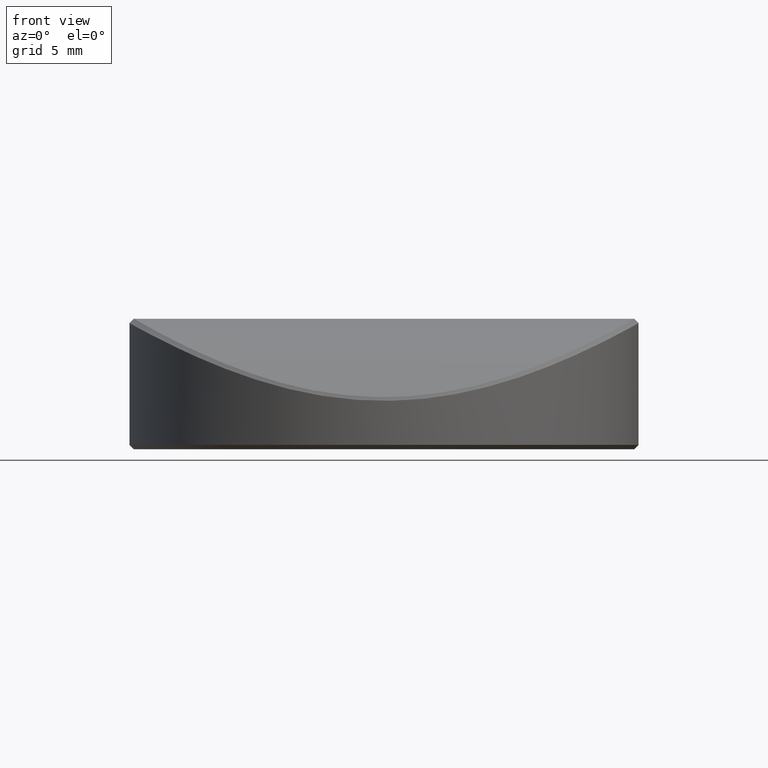
[diagram: clean part render]
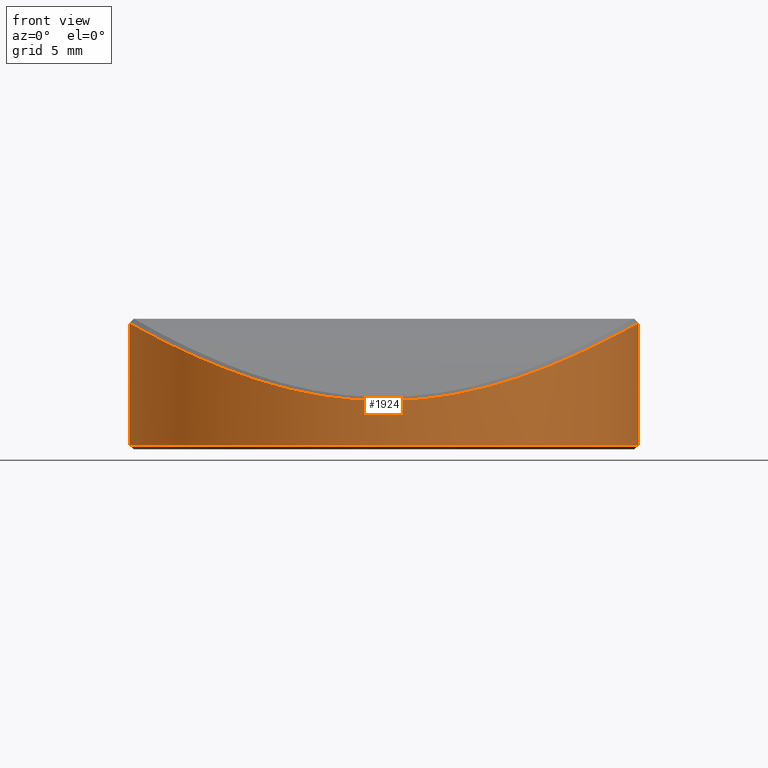
[diagram: same view with one face highlighted and labeled with its STEP entity id]
A machine part, front view. The second image highlights one B-rep face of the part: STEP entity #1924.
In plain terms, the highlighted cylindrical surface (partial cylindrical patch) has radius 11.7 mm, axis along (-0, -0, -1).
Its self-contained STEP definition (entity closure, byte-faithful):
#5 = CARTESIAN_POINT ( 'NONE',  ( 11.31276709840523331, -2.986761327110799780, 5.586652815700380081 ) ) ;
#21 = CARTESIAN_POINT ( 'NONE',  ( 10.24079165337456132, -5.659046859292805820, 5.022656455441911305 ) ) ;
#37 = CARTESIAN_POINT ( 'NONE',  ( 10.44133675402282790, -5.280562683658028611, 5.125069347607206005 ) ) ;
#51 = CARTESIAN_POINT ( 'NONE',  ( 9.393559780590925001, -6.975071816256519952, 4.606327151723854207 ) ) ;
#52 = CARTESIAN_POINT ( 'NONE',  ( -9.366290171199302961, -7.011647395919766268, 4.593378817349505816 ) ) ;
#57 = CARTESIAN_POINT ( 'NONE',  ( -3.366476431530291968, -11.20532172326735854, 2.549591653563082261 ) ) ;
#61 = CARTESIAN_POINT ( 'NONE',  ( 10.33073799526684944, -5.492554153558276475, 5.068447421700122746 ) ) ;
#62 = CARTESIAN_POINT ( 'NONE',  ( -11.50614074134109188, -2.129880214035561270, 5.692561529066376025 ) ) ;
#65 = CARTESIAN_POINT ( 'NONE',  ( -0.4957057794558956121, -11.68990061184792495, 2.232012667514902571 ) ) ;
#66 = CARTESIAN_POINT ( 'NONE',  ( -7.433077330393649262, -9.035452578234307808, 3.752557954352078617 ) ) ;
#77 = CARTESIAN_POINT ( 'NONE',  ( 10.05152650205296538, -5.988247894015151118, 4.927344808007994459 ) ) ;
#82 = CARTESIAN_POINT ( 'NONE',  ( -5.483742273092666153, -10.33533539184278105, 3.072967787859373967 ) ) ;
#93 = CARTESIAN_POINT ( 'NONE',  ( 7.346831424935656329, -9.106316777272791541, 3.718618832407679431 ) ) ;
#94 = CARTESIAN_POINT ( 'NONE',  ( -10.26931150986323793, -5.606564367772189250, 5.037161539109564323 ) ) ;
#100 = CARTESIAN_POINT ( 'NONE',  ( -6.257483418176787993, -9.886845739900250507, 3.320898057219264121 ) ) ;
#109 = CARTESIAN_POINT ( 'NONE',  ( 5.096102939514758567, -10.53186893283676184, 2.959771684779168854 ) ) ;
#114 = CARTESIAN_POINT ( 'NONE',  ( -5.649543323659997007, -10.24602293499118666, 3.123530586749246662 ) ) ;
#124 = CARTESIAN_POINT ( 'NONE',  ( 6.707797283012785883, -9.586327303402704558, 3.478821411046624679 ) ) ;
#125 = CARTESIAN_POINT ( 'NONE',  ( -11.15312418411757811, -3.536581440406037391, 5.500153962280033504 ) ) ;
#130 = CARTESIAN_POINT ( 'NONE',  ( -7.067860119687424891, -9.324282336933544357, 3.611639716031513903 ) ) ;
#136 = CARTESIAN_POINT ( 'NONE',  ( 7.647669339163194913, -8.854557901609680926, 3.838074246232711761 ) ) ;
#137 = CARTESIAN_POINT ( 'NONE',  ( -11.69999999999999929, -4.116580123655899648E-16, 5.800000000000006040 ) ) ;
#150 = CARTESIAN_POINT ( 'NONE',  ( 6.181486970281519611, -9.933925524965175669, 3.295436732962097715 ) ) ;
#151 = CARTESIAN_POINT ( 'NONE',  ( 11.70000000017588881, -8.827351375119261474E-15, 5.800000004118521346 ) ) ;
#165 = CARTESIAN_POINT ( 'NONE',  ( 11.69262414046449194, -0.4899454896524162439, 5.795880176046194876 ) ) ;
#166 = CARTESIAN_POINT ( 'NONE',  ( -8.246145710022080522, -8.300077180708074209, 4.087148891660275396 ) ) ;
#179 = CARTESIAN_POINT ( 'NONE',  ( -11.69999999999999929, 0.000000000000000000, 0.2000000000000040079 ) ) ;
#180 = CARTESIAN_POINT ( 'NONE',  ( -7.637594678866840070, -8.863249329813607247, 3.834014150313897140 ) ) ;
#190 = CARTESIAN_POINT ( 'NONE',  ( 0.3926453362889270049, -11.69507825818585012, 2.228515826669296374 ) ) ;
#211 = CARTESIAN_POINT ( 'NONE',  ( -9.523235068935751002, -6.798046038570621619, 4.668198434732349078 ) ) ;
#221 = CYLINDRICAL_SURFACE ( 'NONE', #1421, 11.69999999999999929 ) ;
#231 = VERTEX_POINT ( 'NONE', #649 ) ;
#233 = CARTESIAN_POINT ( 'NONE',  ( -3.415238993427806680, -11.19054924320132471, 2.558970747057338624 ) ) ;
#241 = CARTESIAN_POINT ( 'NONE',  ( 8.590658264706098279, -7.943394481571997012, 4.237347649552201112 ) ) ;
#242 = CARTESIAN_POINT ( 'NONE',  ( -9.002903212689204793, -7.472473349444918256, 4.423615379694197713 ) ) ;
#248 = ORIENTED_EDGE ( 'NONE', *, *, #1105, .T. ) ;
#264 = CARTESIAN_POINT ( 'NONE',  ( 8.183104711833875555, -8.362456592234302377, 4.060149863110547486 ) ) ;
#265 = CARTESIAN_POINT ( 'NONE',  ( -8.885273088789960028, -7.612105479406485742, 4.369762832516074447 ) ) ;
#287 = CARTESIAN_POINT ( 'NONE',  ( 9.465533040855481417, -6.877337522744229936, 4.640616173308417025 ) ) ;
#288 = CARTESIAN_POINT ( 'NONE',  ( -10.50983332267902881, -5.141557383355126021, 5.160440022734766430 ) ) ;
#301 = CARTESIAN_POINT ( 'NONE',  ( 4.837363586792831960, -10.65389537839579859, 2.888134067369506841 ) ) ;
#302 = CARTESIAN_POINT ( 'NONE',  ( -10.40469413675462285, -5.352385249058246863, 5.106246020792624130 ) ) ;
#317 = CARTESIAN_POINT ( 'NONE',  ( 5.137446850296052858, -10.51176332729035501, 2.971483812034422467 ) ) ;
#318 = CARTESIAN_POINT ( 'NONE',  ( -11.12405877237127960, -3.626946994869427510, 5.484494870751873918 ) ) ;
#322 = CARTESIAN_POINT ( 'NONE',  ( -6.500422769124599931, -9.728034558580729296, 3.405044788132399525 ) ) ;
#332 = CARTESIAN_POINT ( 'NONE',  ( 6.439583536772212291, -9.768900962548181965, 3.383620335905432430 ) ) ;
#333 = CARTESIAN_POINT ( 'NONE',  ( -10.71081275936534993, -4.708581527744708950, 5.265031349405718153 ) ) ;
#339 = CARTESIAN_POINT ( 'NONE',  ( -7.248646229490603332, -9.184188502625364237, 3.680670849919225329 ) ) ;
#348 = CARTESIAN_POINT ( 'NONE',  ( 5.076580841827220247, -10.54129555969114662, 2.954270304127609048 ) ) ;
#363 = CARTESIAN_POINT ( 'NONE',  ( 7.103576422932486700, -9.296914671778566230, 3.625200192079107708 ) ) ;
#368 = CARTESIAN_POINT ( 'NONE',  ( -1.948145366513692744, -11.53707754924082352, 2.334281311325313357 ) ) ;
#379 = CARTESIAN_POINT ( 'NONE',  ( -2.139363006659135813, -11.50315411841482316, 2.356714541848978328 ) ) ;
#380 = CARTESIAN_POINT ( 'NONE',  ( -7.647310403000418866, -8.854867856792552061, 3.837929603565509051 ) ) ;
#388 = CARTESIAN_POINT ( 'NONE',  ( -2.519628052340348923, -11.42588758051158493, 2.407459976272078528 ) ) ;
#400 = CARTESIAN_POINT ( 'NONE',  ( 0.7849443034327326929, -11.67404999046240377, 2.242712388289398895 ) ) ;
#405 = VECTOR ( 'NONE', #2668, 1000.000000000000000 ) ;
#406 = CARTESIAN_POINT ( 'NONE',  ( 11.62137216293010056, -1.367802224319755400, 5.756280257913202192 ) ) ;
#407 = ORIENTED_EDGE ( 'NONE', *, *, #1323, .T. ) ;
#414 = CARTESIAN_POINT ( 'NONE',  ( 2.516937278407011203, -11.42647997449976138, 2.407073009380306772 ) ) ;
#418 = CARTESIAN_POINT ( 'NONE',  ( 11.28748568915833772, -3.080948243229197026, 5.572896244033930024 ) ) ;
#420 = CARTESIAN_POINT ( 'NONE',  ( -8.003288945800115073, -8.534512788868420685, 3.984216492429750289 ) ) ;
#430 = CARTESIAN_POINT ( 'NONE',  ( 1.273225100738118343, -11.63093036570375993, 2.271707519412577092 ) ) ;
#459 = CARTESIAN_POINT ( 'NONE',  ( -3.825167172317071707, -11.05714528513048833, 2.642883900964753341 ) ) ;
#467 = CARTESIAN_POINT ( 'NONE',  ( 9.707400175547842736, -6.531225611998240588, 4.757409182889754895 ) ) ;
#482 = CARTESIAN_POINT ( 'NONE',  ( 8.653727393839533377, -7.874205382201619585, 4.265450939742052583 ) ) ;
#485 = CARTESIAN_POINT ( 'NONE',  ( -1.564053431794985682, -11.59539611273603654, 2.295485740615611281 ) ) ;
#494 = CARTESIAN_POINT ( 'NONE',  ( 11.02458939232385049, -3.918011588256586464, 5.431143109778121314 ) ) ;
#495 = CARTESIAN_POINT ( 'NONE',  ( -10.13341831830379647, -5.849731318705649663, 4.968374569700099386 ) ) ;
#508 = CARTESIAN_POINT ( 'NONE',  ( 10.68667449983459861, -4.764555491278913202, 5.252352725724372284 ) ) ;
#509 = CARTESIAN_POINT ( 'NONE',  ( -11.59630760767227819, -1.557254117401371651, 5.742392190564673093 ) ) ;
#514 = CARTESIAN_POINT ( 'NONE',  ( -7.474926633375590157, -9.000955110883362309, 3.769053125204956167 ) ) ;
#524 = CARTESIAN_POINT ( 'NONE',  ( 5.472365004885191730, -10.34178811334519210, 3.069368679870805305 ) ) ;
#528 = CARTESIAN_POINT ( 'NONE',  ( -7.408111533566259510, -9.055946860368841556, 3.742738335579755660 ) ) ;
#536 = CARTESIAN_POINT ( 'NONE',  ( 7.016853713758737676, -9.362364901089755165, 3.592552662389788320 ) ) ;
#537 = CARTESIAN_POINT ( 'NONE',  ( -10.82333599202197227, -4.444652514304131330, 5.324189863064910710 ) ) ;
#541 = CARTESIAN_POINT ( 'NONE',  ( -4.909717604982358097, -10.62020390496557631, 2.907980101899511283 ) ) ;
#543 = VECTOR ( 'NONE', #1545, 1000.000000000000000 ) ;
#551 = CARTESIAN_POINT ( 'NONE',  ( 7.157922757164785210, -9.255071818519677862, 3.645881324654124622 ) ) ;
#556 = CARTESIAN_POINT ( 'NONE',  ( -6.532314813540621934, -9.706646340482885549, 3.416264465228155522 ) ) ;
#566 = CARTESIAN_POINT ( 'NONE',  ( 5.962990793496824260, -10.06688579704439235, 3.223094145464605376 ) ) ;
#573 = VERTEX_POINT ( 'NONE', #1094 ) ;
#577 = CARTESIAN_POINT ( 'NONE',  ( 4.580238506081969696, -10.76624138232783245, 2.820996269274983703 ) ) ;
#602 = CARTESIAN_POINT ( 'NONE',  ( -8.267889505875682943, -8.278408377757417114, 4.096487840472318176 ) ) ;
#625 = CARTESIAN_POINT ( 'NONE',  ( 2.991000388908815921, -11.31165482003111045, 2.481575945313200471 ) ) ;
#629 = CARTESIAN_POINT ( 'NONE',  ( 11.67411069875451801, -0.7840933259235736141, 5.785578983502340122 ) ) ;
#633 = CARTESIAN_POINT ( 'NONE',  ( -11.69999999999999929, 0.000000000000000000, 7.000000000000000000 ) ) ;
#635 = ORIENTED_EDGE ( 'NONE', *, *, #1497, .T. ) ;
#644 = CARTESIAN_POINT ( 'NONE',  ( -8.511747475302559707, -8.027599433462588863, 4.202533715624436894 ) ) ;
#649 = CARTESIAN_POINT ( 'NONE',  ( -11.69999999999999929, -4.116580123655899648E-16, 5.800000000000006040 ) ) ;
#659 = CARTESIAN_POINT ( 'NONE',  ( -8.930493194609912422, -7.559095768960237827, 4.390381366560547782 ) ) ;
#671 = CARTESIAN_POINT ( 'NONE',  ( 0.000000000000000000, 0.000000000000000000, 7.000000000000000000 ) ) ;
#674 = CARTESIAN_POINT ( 'NONE',  ( 8.433706903603512828, -8.109548218017978982, 4.168318698561491509 ) ) ;
#690 = CARTESIAN_POINT ( 'NONE',  ( 8.761324882535420855, -7.754566066535106827, 4.313625046452704836 ) ) ;
#691 = CARTESIAN_POINT ( 'NONE',  ( -8.646466780838490962, -7.882177672073697572, 4.262214510930881772 ) ) ;
#702 = CARTESIAN_POINT ( 'NONE',  ( 8.383685418280087731, -8.161378693733338352, 4.146500111605790906 ) ) ;
#713 = CARTESIAN_POINT ( 'NONE',  ( 9.377922925967274281, -6.996075191306994512, 4.598899431688301398 ) ) ;
#714 = CARTESIAN_POINT ( 'NONE',  ( -11.58299436005347971, -1.653386053793027166, 5.735021101105993502 ) ) ;
#719 = CARTESIAN_POINT ( 'NONE',  ( -5.916298078182931519, -10.09413231719758208, 3.208052224328328261 ) ) ;
#729 = CARTESIAN_POINT ( 'NONE',  ( 10.17221050457632536, -5.782035258927898269, 4.987921869178047807 ) ) ;
#730 = CARTESIAN_POINT ( 'NONE',  ( -10.46818849143658703, -5.225824193807405038, 5.138946589201204951 ) ) ;
#736 = CARTESIAN_POINT ( 'NONE',  ( -5.771489085932133278, -10.17819824740983314, 3.161567176899664044 ) ) ;
#746 = CARTESIAN_POINT ( 'NONE',  ( 6.318912341548876377, -9.847672008011327804, 3.341850854616202238 ) ) ;
#747 = CARTESIAN_POINT ( 'NONE',  ( -10.96378924015611567, -4.085049483640209367, 5.398690414763725798 ) ) ;
#752 = CARTESIAN_POINT ( 'NONE',  ( -1.081955212222729834, -11.65026759571604309, 2.258724365115845512 ) ) ;
#753 = CARTESIAN_POINT ( 'NONE',  ( -4.757494383022554452, -10.68981372202354585, 2.866808585749116567 ) ) ;
#761 = CARTESIAN_POINT ( 'NONE',  ( 7.898080646995738086, -8.631980619207032746, 3.940407259410370067 ) ) ;
#762 = CARTESIAN_POINT ( 'NONE',  ( -11.23956562126620007, -3.255843062732312720, 5.546844160675232338 ) ) ;
#775 = CARTESIAN_POINT ( 'NONE',  ( 5.637490417826227507, -10.25227886054550908, 3.119948433859169867 ) ) ;
#781 = CARTESIAN_POINT ( 'NONE',  ( -6.139693926805072088, -9.960034225589806667, 3.281360075985068736 ) ) ;
#790 = CARTESIAN_POINT ( 'NONE',  ( 6.558035484682174676, -9.689306993736357398, 3.425341770125871044 ) ) ;
#795 = CARTESIAN_POINT ( 'NONE',  ( -8.026680765934832706, -8.512522510663155018, 3.994020577331389266 ) ) ;
#802 = CARTESIAN_POINT ( 'NONE',  ( 5.597482240474594306, -10.27417697983845102, 3.107610328304905245 ) ) ;
#828 = CARTESIAN_POINT ( 'NONE',  ( 3.363249272989388139, -11.20661674140253616, 2.548794053079348476 ) ) ;
#851 = CARTESIAN_POINT ( 'NONE',  ( 3.504417200826768664, -11.16295150028818739, 2.576446819816487377 ) ) ;
#856 = CARTESIAN_POINT ( 'NONE',  ( 11.20589671878046545, -3.365582066585023124, 5.528653851459755408 ) ) ;
#857 = CARTESIAN_POINT ( 'NONE',  ( -8.652267340022843811, -7.875812803574511634, 4.264799510305284258 ) ) ;
#870 = CARTESIAN_POINT ( 'NONE',  ( 11.42785904118775164, -2.516099863427983863, 5.649535944152579425 ) ) ;
#883 = CARTESIAN_POINT ( 'NONE',  ( 10.10025707620230406, -5.905684114162843557, 4.951765238409918446 ) ) ;
#898 = CARTESIAN_POINT ( 'NONE',  ( 9.028945485457695597, -7.441009610794028895, 4.435605480896670727 ) ) ;
#910 = CARTESIAN_POINT ( 'NONE',  ( 10.62678130147541111, -4.895286815612419851, 5.221126804560916490 ) ) ;
#911 = CARTESIAN_POINT ( 'NONE',  ( -9.438918628469478378, -6.914207658014198010, 4.627867533978004211 ) ) ;
#914 = CARTESIAN_POINT ( 'NONE',  ( -0.1988304111396473617, -11.69872573800331672, 2.226046871656846449 ) ) ;
#917 = CARTESIAN_POINT ( 'NONE',  ( -3.916966453283841076, -11.02495984375927129, 2.662916081459967277 ) ) ;
#924 = CARTESIAN_POINT ( 'NONE',  ( 10.50410641288860703, -5.153879795963406174, 5.157459742913749423 ) ) ;
#925 = CARTESIAN_POINT ( 'NONE',  ( -11.53940146927358867, -1.941645921005819231, 5.710915187718961228 ) ) ;
#929 = CARTESIAN_POINT ( 'NONE',  ( -7.525767713853966256, -8.958610112135243497, 3.789197515466590005 ) ) ;
#939 = CARTESIAN_POINT ( 'NONE',  ( 10.79843062453571001, -4.504010707398529156, 5.311072887560963629 ) ) ;
#944 = CARTESIAN_POINT ( 'NONE',  ( -6.398400348926371883, -9.795642363069857694, 3.369411945966489963 ) ) ;
#954 = CARTESIAN_POINT ( 'NONE',  ( 7.437735890613484280, -9.031625308645638839, 3.754391030232914872 ) ) ;
#960 = CARTESIAN_POINT ( 'NONE',  ( -0.6903965606313918757, -11.68001939740412709, 2.238683600324493650 ) ) ;
#961 = CARTESIAN_POINT ( 'NONE',  ( -6.862244272348678287, -9.476484716066558178, 3.535062710391969176 ) ) ;
#971 = CARTESIAN_POINT ( 'NONE',  ( 8.091002999563210452, -8.451387658965510141, 4.021106464438788386 ) ) ;
#972 = CARTESIAN_POINT ( 'NONE',  ( -9.926713204079167241, -6.193071448346704422, 4.865187023098726193 ) ) ;
#976 = CARTESIAN_POINT ( 'NONE',  ( -6.520947091113325378, -9.714288526968672954, 3.412259420331288595 ) ) ;
#987 = CARTESIAN_POINT ( 'NONE',  ( 8.009300196877459754, -8.528969716425539360, 3.986714441038940127 ) ) ;
#994 = CARTESIAN_POINT ( 'NONE',  ( -7.373461019748919654, -9.084228366833789536, 3.729149189429598277 ) ) ;
#1003 = CARTESIAN_POINT ( 'NONE',  ( 7.665940454793328307, -8.838749452718284161, 3.845448241162053638 ) ) ;
#1016 = CARTESIAN_POINT ( 'NONE',  ( 8.067836620957862692, -8.473491227776236201, 4.011335423086276997 ) ) ;
#1017 = CARTESIAN_POINT ( 'NONE',  ( -11.68042798633305779, -0.7821014843491722601, 5.789075419869615047 ) ) ;
#1030 = CARTESIAN_POINT ( 'NONE',  ( 2.424317944338548081, -11.44649537958277818, 2.393971701806599128 ) ) ;
#1032 = CARTESIAN_POINT ( 'NONE',  ( 11.05691987313196023, -3.825821348964430602, 5.448450826677823322 ) ) ;
#1033 = CARTESIAN_POINT ( 'NONE',  ( -8.257456864966313148, -8.288813788016836881, 4.092005508689222637 ) ) ;
#1041 = CIRCLE ( 'NONE', #2594, 11.69999999999999929 ) ;
#1046 = CARTESIAN_POINT ( 'NONE',  ( -8.414842918419177309, -8.129527024871991969, 4.160021101650036357 ) ) ;
#1061 = CARTESIAN_POINT ( 'NONE',  ( 11.50371508557627287, -2.136365339430015720, 5.691242502751197918 ) ) ;
#1075 = CARTESIAN_POINT ( 'NONE',  ( -9.655947687707090665, -6.607056936016247661, 4.732381869956724607 ) ) ;
#1087 = DIRECTION ( 'NONE',  ( -0.000000000000000000, -0.000000000000000000, -1.000000000000000000 ) ) ;
#1094 = CARTESIAN_POINT ( 'NONE',  ( 11.69999999999999929, 1.432836755002403087E-15, 0.2000000000000040079 ) ) ;
#1097 = CARTESIAN_POINT ( 'NONE',  ( -3.687736906191359854, -11.10436503741912340, 2.613402144614754175 ) ) ;
#1104 = CARTESIAN_POINT ( 'NONE',  ( 8.530487173795346934, -8.008091303344743395, 4.210722648407907442 ) ) ;
#1105 = EDGE_CURVE ( 'NONE', #231, #1454, #2643, .T. ) ;
#1106 = CARTESIAN_POINT ( 'NONE',  ( -9.023444389036139768, -7.447657564041139544, 4.433072577516375290 ) ) ;
#1122 = CARTESIAN_POINT ( 'NONE',  ( 11.00760859804016967, -3.965452561614099203, 5.422066941549376295 ) ) ;
#1127 = CARTESIAN_POINT ( 'NONE',  ( -2.991912970782153014, -11.31139531257247732, 2.481741694917042107 ) ) ;
#1133 = CARTESIAN_POINT ( 'NONE',  ( 8.122636370079654000, -8.421036476295002515, 4.034480385619247045 ) ) ;
#1135 = CARTESIAN_POINT ( 'NONE',  ( -9.284510393373267334, -7.119802484314350366, 4.554696945263311925 ) ) ;
#1148 = CARTESIAN_POINT ( 'NONE',  ( 10.58617063511861822, -4.982499886668183109, 5.199998550411092602 ) ) ;
#1149 = CARTESIAN_POINT ( 'NONE',  ( -11.44841386592645449, -2.415209323409736708, 5.660831266979672094 ) ) ;
#1162 = CARTESIAN_POINT ( 'NONE',  ( 9.122528896878669968, -7.326222581376315546, 4.478894955169487879 ) ) ;
#1163 = CARTESIAN_POINT ( 'NONE',  ( -11.62051072099400528, -1.364961941295382397, 5.755805939474707422 ) ) ;
#1176 = CARTESIAN_POINT ( 'NONE',  ( 4.448009477067083495, -10.82195233974670678, 2.787444315714710630 ) ) ;
#1177 = CARTESIAN_POINT ( 'NONE',  ( -10.59233511614981182, -4.970092455981413693, 5.203178658378406318 ) ) ;
#1183 = CARTESIAN_POINT ( 'NONE',  ( -0.1003177984919236682, -11.69998412232918383, 2.225194580959719559 ) ) ;
#1184 = CARTESIAN_POINT ( 'NONE',  ( -4.498004750261203277, -10.80085840133635955, 2.800144588224797282 ) ) ;
#1196 = CARTESIAN_POINT ( 'NONE',  ( 7.603530755595229174, -8.892637691561420255, 3.820285556528907112 ) ) ;
#1197 = CARTESIAN_POINT ( 'NONE',  ( -9.693885053102706095, -6.551272758534972596, 4.750825310416734837 ) ) ;
#1201 = CARTESIAN_POINT ( 'NONE',  ( -7.438916261712346767, -9.030645145455855172, 3.754858013212751366 ) ) ;
#1211 = CARTESIAN_POINT ( 'NONE',  ( 8.037434765357970079, -8.502385788931134059, 3.998533728337573034 ) ) ;
#1212 = CARTESIAN_POINT ( 'NONE',  ( -11.03017521521936573, -3.903183464064182928, 5.434116655827819997 ) ) ;
#1218 = CARTESIAN_POINT ( 'NONE',  ( -5.145731254790199216, -10.50808771780218365, 2.973676588905502793 ) ) ;
#1225 = CARTESIAN_POINT ( 'NONE',  ( 7.767004639371605457, -8.750188414933417036, 3.886481756693410450 ) ) ;
#1229 = CARTESIAN_POINT ( 'NONE',  ( -7.305237111567046249, -9.139355669546253225, 3.702529674062539744 ) ) ;
#1240 = CARTESIAN_POINT ( 'NONE',  ( 6.823168612603375927, -9.504905697365741091, 3.520648058553722315 ) ) ;
#1245 = LINE ( 'NONE', #1300, #405 ) ;
#1254 = CARTESIAN_POINT ( 'NONE',  ( -7.653828876018975436, -8.849232635475438258, 3.840559226888403010 ) ) ;
#1264 = CARTESIAN_POINT ( 'NONE',  ( 1.368327923548938507, -11.62011855118482018, 2.278955584918618715 ) ) ;
#1271 = CARTESIAN_POINT ( 'NONE',  ( -8.065653766700364713, -8.475567633590470606, 4.010415978569508155 ) ) ;
#1282 = CARTESIAN_POINT ( 'NONE',  ( 0.6885927312828284963, -11.68013683595892616, 2.238604971943126909 ) ) ;
#1300 = CARTESIAN_POINT ( 'NONE',  ( 11.69999999999999929, 1.432836755002403087E-15, 7.000000000000000000 ) ) ;
#1310 = CARTESIAN_POINT ( 'NONE',  ( 1.077818003924611689, -11.65066314333289021, 2.258458064847353786 ) ) ;
#1315 = CARTESIAN_POINT ( 'NONE',  ( -8.610488291346284129, -7.921508697487792183, 4.246202191457463471 ) ) ;
#1323 = EDGE_CURVE ( 'NONE', #1454, #573, #1041, .T. ) ;
#1329 = CARTESIAN_POINT ( 'NONE',  ( 8.900504368755331797, -7.594721929791097281, 4.376645213929143630 ) ) ;
#1330 = CARTESIAN_POINT ( 'NONE',  ( -9.184535097008593496, -7.249125526398375818, 4.507703320462668195 ) ) ;
#1343 = CARTESIAN_POINT ( 'NONE',  ( 9.879447069050296903, -6.269159047786494909, 4.841734841131019706 ) ) ;
#1350 = CARTESIAN_POINT ( 'NONE',  ( -2.805989337173983245, -11.35894497661146829, 2.451023770856649797 ) ) ;
#1358 = CARTESIAN_POINT ( 'NONE',  ( 8.277399141170096897, -8.268907271312585294, 4.100576334740560824 ) ) ;
#1359 = CARTESIAN_POINT ( 'NONE',  ( -8.632152142665498573, -7.897851735260429606, 4.255840053643293430 ) ) ;
#1372 = CARTESIAN_POINT ( 'NONE',  ( 10.81760090090278581, -4.457785771395393226, 5.321181793120916659 ) ) ;
#1373 = CARTESIAN_POINT ( 'NONE',  ( -11.38601567402376880, -2.694039879023679696, 5.626631147471059968 ) ) ;
#1385 = CARTESIAN_POINT ( 'NONE',  ( 9.422493518311325644, -6.935935992413180706, 4.620096951673900776 ) ) ;
#1390 = CARTESIAN_POINT ( 'NONE',  ( -7.589874429929414745, -8.904205721146567498, 3.814830059081180558 ) ) ;
#1401 = CARTESIAN_POINT ( 'NONE',  ( 4.622900600569333385, -10.74799182696004607, 2.831952283077749932 ) ) ;
#1402 = CARTESIAN_POINT ( 'NONE',  ( -10.20255945513975782, -5.727124863699729396, 5.003318105647337255 ) ) ;
#1406 = CARTESIAN_POINT ( 'NONE',  ( -0.9829442194285930023, -11.65904756998130232, 2.252817945512330944 ) ) ;
#1416 = CARTESIAN_POINT ( 'NONE',  ( 6.084744157379494922, -9.993317777730432283, 3.263221597910367588 ) ) ;
#1417 = CARTESIAN_POINT ( 'NONE',  ( -11.06233067116257196, -3.811071791060708591, 5.451339230149073956 ) ) ;
#1421 = AXIS2_PLACEMENT_3D ( 'NONE', #671, #1087, #1976 ) ;
#1430 = CARTESIAN_POINT ( 'NONE',  ( 6.992706446619353144, -9.380416529662632286, 3.583509735429573073 ) ) ;
#1445 = CARTESIAN_POINT ( 'NONE',  ( 5.697687998100422924, -10.21910222901591681, 3.138601994405003204 ) ) ;
#1450 = CARTESIAN_POINT ( 'NONE',  ( -4.453160093072048298, -10.81942485183760638, 2.788923233127445389 ) ) ;
#1454 = VERTEX_POINT ( 'NONE', #179 ) ;
#1459 = CARTESIAN_POINT ( 'NONE',  ( 4.559957952850325569, -10.77484911797962042, 2.815820036674351101 ) ) ;
#1480 = CARTESIAN_POINT ( 'NONE',  ( 1.561489951284307676, -11.59574170038258245, 2.295254762079187660 ) ) ;
#1481 = CARTESIAN_POINT ( 'NONE',  ( -11.70000000000000284, -0.3905544087050404345, 5.799999701167927846 ) ) ;
#1486 = CARTESIAN_POINT ( 'NONE',  ( -8.345938861645006313, -8.200371637479205944, 4.130054265572306704 ) ) ;
#1496 = CARTESIAN_POINT ( 'NONE',  ( 1.658189414352323920, -11.58231370554982931, 2.304213865707872344 ) ) ;
#1497 = EDGE_CURVE ( 'NONE', #1738, #231, #1536, .T. ) ;
#1502 = CARTESIAN_POINT ( 'NONE',  ( 11.65044060638675738, -1.080058862099568140, 5.772421868933504285 ) ) ;
#1518 = DIRECTION ( 'NONE',  ( -0.000000000000000000, -0.000000000000000000, 1.000000000000000000 ) ) ;
#1524 = CARTESIAN_POINT ( 'NONE',  ( 1.945623988115414260, -11.53750275525988123, 2.333999727052752604 ) ) ;
#1536 = B_SPLINE_CURVE_WITH_KNOTS ( 'NONE', 3,
 ( #1978, #2146, #165, #629, #2847, #1502, #406, #2189, #2177, #1061, #1965, #870, #2861, #5, #418, #2875, #856, #2652, #2421, #1032, #494, #1122, #2480, #1599, #2700, #1372, #939, #2261, #508, #910, #1148, #2743, #924, #37, #2040, #61, #2713, #21, #729, #883, #77, #1777, #1815, #1343, #1616, #2685, #2272, #467, #2724, #2024, #287, #1385, #51, #713, #2493, #2235, #1162, #2055, #1995, #898, #2511, #1329, #2219, #690, #1571, #2463, #1803, #482, #241, #1104, #674, #702, #1556, #1585, #1358, #2449, #2251, #264, #1133, #971, #2546, #1016, #2070, #1211, #987, #1632, #2287, #761, #1677, #2527, #1225, #1647, #2348, #1003, #1873, #2333, #136, #1196, #2803, #1889, #2101, #2759, #954, #93, #2130, #551, #363, #2773, #536, #1843, #1430, #2318, #1240, #124, #2087, #2562, #790, #2577, #332, #746, #150, #1902, #1416, #2790, #566, #2816, #1445, #775, #802, #1690, #524, #1663, #2303, #317, #109, #348, #1858, #301, #2115, #1401, #577, #1459, #1176, #2843, #2403, #2142, #2621, #1944, #1960, #2374, #1728, #851, #828, #2635, #2201, #625, #1742, #2174, #414, #1030, #2184, #2605, #1524, #2417, #1496, #1480, #1264, #430, #1310, #2389, #400, #1282, #190, #2469, #1183, #914, #1623, #65, #960, #2293, #1406, #752, #2011, #1589, #485, #2484, #2809, #368, #379, #2308, #2147, #388, #2002, #1350, #1127, #2443, #1592, #57, #233, #2243, #1097, #459, #917, #2227, #1808, #2266, #2487, #1450, #1184, #2339, #1605, #753, #541, #2060, #2730, #2076, #1218, #2106, #2309, #82, #2794, #2750, #114, #736, #719, #1652, #1668, #1833, #781, #100, #944, #2552, #322, #976, #556, #2091, #2323, #1624, #961, #2517, #2500, #2566, #1863, #130, #2533, #339, #1229, #994, #528, #1879, #66, #1201, #514, #929, #1390, #1850, #180, #380, #1254, #2164, #2810, #2639, #2134, #1719, #1704, #420, #795, #2609, #2394, #1271, #1908, #1681, #2582, #2148, #166, #1033, #1922, #602, #1486, #1046, #644, #2701, #1315, #1359, #691, #857, #2464, #1748, #265, #659, #2422, #242, #1804, #1106, #1541, #1330, #1135, #2025, #2190, #52, #911, #211, #2714, #1075, #1600, #1197, #1617, #2512, #972, #1633, #1664, #2273, #2072, #495, #1402, #2041, #94, #1828, #302, #730, #288, #1816, #1177, #1844, #333, #2760, #2056, #537, #2774, #2547, #747, #2725, #1212, #1417, #318, #125, #762, #1648, #1874, #1373, #2262, #1149, #62, #925, #714, #509, #1163, #1903, #1017, #1481, #137 ),
 .UNSPECIFIED., .F., .F.,
 ( 4, 1, 2, 2, 1, 2, 2, 2, 2, 2, 1, 2, 2, 1, 2, 2, 1, 2, 2, 1, 2, 2, 1, 2, 2, 1, 1, 2, 2, 1, 1, 2, 2, 1, 1, 2, 2, 2, 1, 1, 2, 2, 2, 1, 1, 2, 2, 1, 1, 1, 2, 2, 2, 2, 2, 2, 1, 1, 2, 2, 1, 1, 2, 2, 2, 1, 1, 2, 2, 2, 1, 2, 2, 1, 1, 2, 2, 1, 1, 2, 2, 1, 1, 2, 2, 1, 1, 2, 2, 1, 2, 2, 1, 2, 2, 2, 2, 2, 2, 2, 2, 2, 2, 2, 2, 2, 2, 2, 2, 2, 2, 2, 2, 2, 2, 2, 1, 2, 2, 1, 2, 2, 1, 1, 2, 2, 1, 1, 2, 2, 1, 1, 2, 2, 1, 1, 2, 2, 1, 1, 1, 2, 2, 2, 1, 1, 2, 2, 2, 1, 1, 1, 2, 2, 1, 1, 1, 2, 2, 2, 2, 2, 1, 1, 2, 2, 1, 1, 1, 2, 2, 2, 1, 1, 2, 2, 2, 1, 1, 2, 2, 1, 1, 2, 2, 1, 1, 2, 2, 1, 1, 2, 2, 1, 2, 2, 1, 2, 2, 1, 2, 2, 1, 2, 2, 2, 2, 2, 2, 2, 2, 2, 2, 4 ),
 ( 0.5000561595213733890, 0.5078677820288556299, 0.5117735932825967504, 0.5156794045363378709, 0.5234910270438201119, 0.5273968382975612323, 0.5313026495513023528, 0.5391142720587845938, 0.5430200833125257143, 0.5469258945662668348, 0.5508317058200079552, 0.5527846114468785155, 0.5547375170737490757, 0.5586433283274901962, 0.5605962339543606454, 0.5625491395812312057, 0.5664549508349722151, 0.5684078564618427754, 0.5703607620887133356, 0.5742665733424543451, 0.5762194789693249053, 0.5781723845961954655, 0.5820781958499365860, 0.5840311014768071463, 0.5859840071036777065, 0.5898898183574188270, 0.5918427239842893872, 0.5928191767977246673, 0.5937956296111599475, 0.5977014408649009569, 0.5996543464917714061, 0.6006307993052066863, 0.6016072521186418554, 0.6055130633723826428, 0.6074659689992529810, 0.6084424218126881501, 0.6094188746261233192, 0.6133246858798638845, 0.6152775915067342227, 0.6162540443201693918, 0.6167422707268869209, 0.6172304971336044499, 0.6211363083873450153, 0.6230892140142152424, 0.6240656668276503005, 0.6245538932343679406, 0.6250421196410854696, 0.6269950252679558078, 0.6279714780813910879, 0.6284597044881086170, 0.6287038176914674370, 0.6289479308948262570, 0.6309008365216959291, 0.6318772893351307651, 0.6328537421485656012, 0.6348066477754353842, 0.6357831005888702203, 0.6362713269955877493, 0.6365154401989464583, 0.6367595534023052783, 0.6387124590291752835, 0.6396889118426103416, 0.6401771382493278706, 0.6406653646560453996, 0.6445711759097855209, 0.6465240815366556371, 0.6475005343500905841, 0.6479887607568082242, 0.6484769871635256422, 0.6523827984172657635, 0.6543357040441358796, 0.6553121568575709377, 0.6562886096710058847, 0.6601944209247461171, 0.6621473265516161222, 0.6631237793650511803, 0.6641002321784861273, 0.6680060434322263596, 0.6699589490590964758, 0.6709354018725315338, 0.6719118546859665919, 0.6758176659397068242, 0.6777705715665768293, 0.6787470243800118874, 0.6797234771934470565, 0.6836292884471872888, 0.6855821940740574050, 0.6865586468874924631, 0.6875350997009275211, 0.6914409109546677534, 0.6933938165815377586, 0.6953467222084078747, 0.6992525334621479960, 0.7012054390890181121, 0.7031583447158882283, 0.7070641559696283496, 0.7109699672233685819, 0.7148757784771087032, 0.7187815897308489355, 0.7226874009845890567, 0.7265932122383292890, 0.7304990234920694103, 0.7344048347458096426, 0.7383106459995498749, 0.7422164572532899962, 0.7500280797607703498, 0.7539338910145105821, 0.7578397022682508144, 0.7617455135219909357, 0.7656513247757310570, 0.7695571360294712893, 0.7734629472832115216, 0.7773687585369516428, 0.7812745697906917641, 0.7851803810444319964, 0.7890861922981722287, 0.7929920035519123500, 0.7949449091787824662, 0.7968978148056525823, 0.8008036260593927036, 0.8027565316862628197, 0.8047094373131329359, 0.8086152485668730572, 0.8105681541937430623, 0.8115446070071781204, 0.8125210598206131785, 0.8164268710743531887, 0.8183797767012233049, 0.8193562295146581409, 0.8203326823280931990, 0.8242384935818332092, 0.8261913992087031033, 0.8271678520221380504, 0.8281443048355729974, 0.8320501160893125636, 0.8340030217161824577, 0.8349794745296172938, 0.8359559273430523518, 0.8398617385967919180, 0.8418146442236618121, 0.8427910970370967592, 0.8432793234438141772, 0.8437675498505315952, 0.8476733611042710503, 0.8496262667311407224, 0.8506027195445755584, 0.8510909459512929764, 0.8515791723580103945, 0.8554849836117501827, 0.8574378892386200768, 0.8584143420520550238, 0.8589025684587725529, 0.8591466816621312619, 0.8593907948654899709, 0.8613437004923595319, 0.8623201533057943680, 0.8628083797125116750, 0.8630524929158702729, 0.8632966061192289819, 0.8652495117460978769, 0.8672024173729665497, 0.8691553229998353336, 0.8701317758132697255, 0.8706200022199869215, 0.8708641154233455195, 0.8711082286267040065, 0.8730611342535726793, 0.8740375870670071823, 0.8745258134737242672, 0.8747699266770827542, 0.8750140398804413522, 0.8789198511341774767, 0.8808727567610454834, 0.8818492095744794312, 0.8823374359811966272, 0.8828256623879137122, 0.8867314736416497256, 0.8886843792685178434, 0.8896608320819519022, 0.8901490584886688762, 0.8906372848953858501, 0.8945430961491220856, 0.8964960017759900923, 0.8974724545894241512, 0.8984489074028582101, 0.9023547186565943345, 0.9043076242834624523, 0.9052840770968964001, 0.9062605299103305700, 0.9101663411640668055, 0.9121192467909349233, 0.9130956996043688711, 0.9140721524178030410, 0.9179779636715392765, 0.9199308692984071723, 0.9218837749252752900, 0.9257895861790115255, 0.9277424918058795322, 0.9296953974327476500, 0.9336012086864837745, 0.9355541143133518922, 0.9375070199402200100, 0.9414128311939562455, 0.9433657368208243632, 0.9453186424476924810, 0.9492244537014287165, 0.9531302649551649520, 0.9609418874626375340, 0.9648476987163737695, 0.9687535099701100050, 0.9765651324775824760, 0.9804709437313187115, 0.9843767549850549470, 1.000000000000000000 ),
 .UNSPECIFIED. ) ;
#1541 = CARTESIAN_POINT ( 'NONE',  ( -9.093946933784961217, -7.362054502196783368, 4.465582934746731958 ) ) ;
#1545 = DIRECTION ( 'NONE',  ( -0.000000000000000000, -0.000000000000000000, -1.000000000000000000 ) ) ;
#1556 = CARTESIAN_POINT ( 'NONE',  ( 8.322389340908873834, -8.223682816086657965, 4.119966022433942499 ) ) ;
#1571 = CARTESIAN_POINT ( 'NONE',  ( 8.704480324048969209, -7.818125052084994309, 4.288124055840069282 ) ) ;
#1585 = CARTESIAN_POINT ( 'NONE',  ( 8.295480979898670171, -8.250767195597576986, 4.108363040419539480 ) ) ;
#1589 = CARTESIAN_POINT ( 'NONE',  ( -1.370920276340531041, -11.61981289628547032, 2.279160032117338641 ) ) ;
#1592 = CARTESIAN_POINT ( 'NONE',  ( -3.272552716632158631, -11.23311164383403593, 2.531900287705520114 ) ) ;
#1599 = CARTESIAN_POINT ( 'NONE',  ( 10.90789437815847229, -4.233683751516405636, 5.368935064176739047 ) ) ;
#1600 = CARTESIAN_POINT ( 'NONE',  ( -9.681803084088636879, -6.569110757509580623, 4.744945870874972549 ) ) ;
#1605 = CARTESIAN_POINT ( 'NONE',  ( -4.628327787228581514, -10.74603107594235318, 2.833173851014582745 ) ) ;
#1616 = CARTESIAN_POINT ( 'NONE',  ( 9.788418173801314737, -6.409440251150870793, 4.796999108458315675 ) ) ;
#1617 = CARTESIAN_POINT ( 'NONE',  ( -9.761230640901281674, -6.451177508562161655, 4.783648328550862416 ) ) ;
#1623 = CARTESIAN_POINT ( 'NONE',  ( -0.3959207241117825293, -11.69371473081304202, 2.229435162409971749 ) ) ;
#1624 = CARTESIAN_POINT ( 'NONE',  ( -6.803948759291444048, -9.518324083385424572, 3.513723181613651381 ) ) ;
#1632 = CARTESIAN_POINT ( 'NONE',  ( 7.957655295003513984, -8.577078507437937205, 3.965156338420637194 ) ) ;
#1633 = CARTESIAN_POINT ( 'NONE',  ( -9.963182418733502743, -6.133965158040160404, 4.883303760027782658 ) ) ;
#1647 = CARTESIAN_POINT ( 'NONE',  ( 7.714704069861126889, -8.796242419674547008, 3.865198867953257622 ) ) ;
#1648 = CARTESIAN_POINT ( 'NONE',  ( -11.29210498231131865, -3.068499337942344418, 5.575381738654017205 ) ) ;
#1652 = CARTESIAN_POINT ( 'NONE',  ( -5.978877370758756804, -10.05701839249609897, 3.228426321566294277 ) ) ;
#1663 = CARTESIAN_POINT ( 'NONE',  ( 5.345616313878419845, -10.40815953261128612, 3.031471078460413970 ) ) ;
#1664 = CARTESIAN_POINT ( 'NONE',  ( -9.987300205101172779, -6.094617878275635725, 4.895300709059898558 ) ) ;
#1668 = CARTESIAN_POINT ( 'NONE',  ( -6.020709158380069148, -10.03203143893470894, 3.242109482848107405 ) ) ;
#1677 = CARTESIAN_POINT ( 'NONE',  ( 7.875235956234341472, -8.652837345132383007, 3.930956365785730711 ) ) ;
#1681 = CARTESIAN_POINT ( 'NONE',  ( -8.109273672499071495, -8.434000549077984132, 4.028804302752857502 ) ) ;
#1690 = CARTESIAN_POINT ( 'NONE',  ( 5.578785807917560291, -10.28434411702461837, 3.101870420927673511 ) ) ;
#1704 = CARTESIAN_POINT ( 'NONE',  ( -7.952224385566801779, -8.582208182915207928, 3.962875593512677597 ) ) ;
#1708 = DIRECTION ( 'NONE',  ( 1.000000000000000000, 0.000000000000000000, 0.000000000000000000 ) ) ;
#1719 = CARTESIAN_POINT ( 'NONE',  ( -7.912476740832175004, -8.618962649352447158, 3.946338022082901187 ) ) ;
#1728 = CARTESIAN_POINT ( 'NONE',  ( 3.548109353404159449, -11.14913465570075246, 2.585173431450453307 ) ) ;
#1738 = VERTEX_POINT ( 'NONE', #151 ) ;
#1742 = CARTESIAN_POINT ( 'NONE',  ( 2.800960057083455190, -11.36020426104252579, 2.450208290469888528 ) ) ;
#1748 = CARTESIAN_POINT ( 'NONE',  ( -8.792717874968190017, -7.719263121513352921, 4.327739531193176781 ) ) ;
#1777 = CARTESIAN_POINT ( 'NONE',  ( 10.02571090756460492, -6.031356137165778897, 4.914443638867114217 ) ) ;
#1803 = CARTESIAN_POINT ( 'NONE',  ( 8.663098715268620964, -7.863896848565524067, 4.269630762913673827 ) ) ;
#1804 = CARTESIAN_POINT ( 'NONE',  ( -9.017123120955618631, -7.455307829777498618, 4.430160627194874579 ) ) ;
#1808 = CARTESIAN_POINT ( 'NONE',  ( -4.096977469246674275, -10.95963290825998548, 2.703355356855611902 ) ) ;
#1815 = CARTESIAN_POINT ( 'NONE',  ( 9.953767296997867220, -6.149882992282432959, 4.878586868711915159 ) ) ;
#1816 = CARTESIAN_POINT ( 'NONE',  ( -10.52953086254381887, -5.101110209865408862, 5.170627699190987414 ) ) ;
#1828 = CARTESIAN_POINT ( 'NONE',  ( -10.33807382470369518, -5.479372334611502637, 5.072164198059331497 ) ) ;
#1833 = CARTESIAN_POINT ( 'NONE',  ( -6.043337076512574235, -10.01841228365348080, 3.249548064944185466 ) ) ;
#1843 = CARTESIAN_POINT ( 'NONE',  ( 6.999861191986770592, -9.375076312988854355, 3.586186784749529455 ) ) ;
#1844 = CARTESIAN_POINT ( 'NONE',  ( -10.65308121626266136, -4.839194213090593166, 5.234801266895106053 ) ) ;
#1850 = CARTESIAN_POINT ( 'NONE',  ( -7.623103881092959888, -8.875729211352588521, 3.828179019632481417 ) ) ;
#1858 = CARTESIAN_POINT ( 'NONE',  ( 4.967504369589960334, -10.59354814328271921, 2.923715106089906257 ) ) ;
#1863 = CARTESIAN_POINT ( 'NONE',  ( -6.993055499276145781, -9.380153645087851544, 3.583640996387372546 ) ) ;
#1873 = CARTESIAN_POINT ( 'NONE',  ( 7.656157834741993184, -8.847217914848242160, 3.841499089236742659 ) ) ;
#1874 = CARTESIAN_POINT ( 'NONE',  ( -11.36346851906874811, -2.787635915207852033, 5.614304274195176525 ) ) ;
#1879 = CARTESIAN_POINT ( 'NONE',  ( -7.423075881189060254, -9.043671066289521221, 3.748622124315532211 ) ) ;
#1889 = CARTESIAN_POINT ( 'NONE',  ( 7.486113354900266081, -8.991604723504487140, 3.773493504705797807 ) ) ;
#1902 = CARTESIAN_POINT ( 'NONE',  ( 6.123339470555579034, -9.969715411976578068, 3.276041453649633173 ) ) ;
#1903 = CARTESIAN_POINT ( 'NONE',  ( -11.63125021022538341, -1.270294686033659692, 5.761765090163939895 ) ) ;
#1908 = CARTESIAN_POINT ( 'NONE',  ( -8.067075890275132721, -8.474215511177128235, 4.011014927318330869 ) ) ;
#1909 = EDGE_LOOP ( 'NONE', ( #2646, #635, #248, #407 ) ) ;
#1922 = CARTESIAN_POINT ( 'NONE',  ( -8.264936133172456678, -8.281356084831623221, 4.095218582690533182 ) ) ;
#1924 = ADVANCED_FACE ( 'NONE', ( #2006 ), #221, .T. ) ;
#1944 = CARTESIAN_POINT ( 'NONE',  ( 3.913325605243049843, -11.02658028594962047, 2.661942830362619805 ) ) ;
#1960 = CARTESIAN_POINT ( 'NONE',  ( 3.775783535032751992, -11.07473114077240872, 2.631958649034571884 ) ) ;
#1965 = CARTESIAN_POINT ( 'NONE',  ( 11.48505975101299903, -2.234408806073965970, 5.680972776018496262 ) ) ;
#1976 = DIRECTION ( 'NONE',  ( -1.000000000000000000, 0.000000000000000000, 0.000000000000000000 ) ) ;
#1978 = CARTESIAN_POINT ( 'NONE',  ( 11.70000000017588881, -8.827351375119261474E-15, 5.800000004118521346 ) ) ;
#1995 = CARTESIAN_POINT ( 'NONE',  ( 9.045963840390463417, -7.420318771557291804, 4.443456229945524250 ) ) ;
#2002 = CARTESIAN_POINT ( 'NONE',  ( -2.708959352254391550, -11.38248530649008394, 2.435744668591476536 ) ) ;
#2006 = FACE_OUTER_BOUND ( 'NONE', #1909, .T. ) ;
#2011 = CARTESIAN_POINT ( 'NONE',  ( -1.274487717114302088, -11.63077999069589907, 2.271807757017385132 ) ) ;
#2024 = CARTESIAN_POINT ( 'NONE',  ( 9.563456655953427088, -6.741375675432788483, 4.687546009088423560 ) ) ;
#2025 = CARTESIAN_POINT ( 'NONE',  ( -9.326161658027848134, -7.064929590640932844, 4.574377036206168867 ) ) ;
#2040 = CARTESIAN_POINT ( 'NONE',  ( 10.37540511915786645, -5.407704436262503300, 5.091282399149746674 ) ) ;
#2041 = CARTESIAN_POINT ( 'NONE',  ( -10.24792949030775979, -5.645539814911393783, 5.026303242085728762 ) ) ;
#2055 = CARTESIAN_POINT ( 'NONE',  ( 9.076759982417826222, -7.382616114546095787, 4.457693472216801567 ) ) ;
#2056 = CARTESIAN_POINT ( 'NONE',  ( -10.76655798687895604, -4.579695798571119525, 5.294293353918264167 ) ) ;
#2060 = CARTESIAN_POINT ( 'NONE',  ( -4.975266214276742538, -10.58949063026084580, 2.926038821455418049 ) ) ;
#2070 = CARTESIAN_POINT ( 'NONE',  ( 8.062193894567172947, -8.478858650086186444, 4.008958547795768546 ) ) ;
#2072 = CARTESIAN_POINT ( 'NONE',  ( -10.06096504330576025, -5.972959824963401942, 4.932033539883948769 ) ) ;
#2076 = CARTESIAN_POINT ( 'NONE',  ( -5.042094493096990426, -10.55783177194317801, 2.944602965669350425 ) ) ;
#2087 = CARTESIAN_POINT ( 'NONE',  ( 6.650835696733732760, -9.626005752123482750, 3.458324309551628062 ) ) ;
#2091 = CARTESIAN_POINT ( 'NONE',  ( -6.614057089842827253, -9.651524696475100029, 3.445116903186542512 ) ) ;
#2101 = CARTESIAN_POINT ( 'NONE',  ( 7.460930776304965484, -9.012470658563742631, 3.763541850068446770 ) ) ;
#2106 = CARTESIAN_POINT ( 'NONE',  ( -5.271302938633095181, -10.44601144717977270, 3.009693767693817357 ) ) ;
#2115 = CARTESIAN_POINT ( 'NONE',  ( 4.687007066351859486, -10.72034384063643842, 2.848521953647503935 ) ) ;
#2130 = CARTESIAN_POINT ( 'NONE',  ( 7.269199283977610726, -9.168292754040839654, 3.688510389527546618 ) ) ;
#2134 = CARTESIAN_POINT ( 'NONE',  ( -7.821153783539359416, -8.701916962334832917, 3.908642268253225360 ) ) ;
#2142 = CARTESIAN_POINT ( 'NONE',  ( 4.093320773865997353, -10.96070023656972481, 2.702668866794295965 ) ) ;
#2146 = CARTESIAN_POINT ( 'NONE',  ( 11.70000000000000107, -0.1958223606787559135, 5.800000347748727414 ) ) ;
#2147 = CARTESIAN_POINT ( 'NONE',  ( -2.425208701351222906, -11.44629156550305105, 2.394104250353608965 ) ) ;
#2148 = CARTESIAN_POINT ( 'NONE',  ( -8.219104903505861870, -8.326893794624707468, 4.075557743070504557 ) ) ;
#2164 = CARTESIAN_POINT ( 'NONE',  ( -7.679920428384670927, -8.826650725104519424, 3.851090641884237886 ) ) ;
#2174 = CARTESIAN_POINT ( 'NONE',  ( 2.706131943451987265, -11.38315719717986596, 2.435307703283308811 ) ) ;
#2177 = CARTESIAN_POINT ( 'NONE',  ( 11.53774046996005076, -1.944238277958488581, 5.710001198258502164 ) ) ;
#2184 = CARTESIAN_POINT ( 'NONE',  ( 2.232539015156790541, -11.48544050160264973, 2.368392787769518115 ) ) ;
#2189 = CARTESIAN_POINT ( 'NONE',  ( 11.58507341538710556, -1.655978171846654190, 5.736139836146017856 ) ) ;
#2190 = CARTESIAN_POINT ( 'NONE',  ( -9.353666702700632385, -7.028473561675535386, 4.587394867063250281 ) ) ;
#2201 = CARTESIAN_POINT ( 'NONE',  ( 3.082249305528342642, -11.28712499862724172, 2.497356230027009349 ) ) ;
#2219 = CARTESIAN_POINT ( 'NONE',  ( 8.808422513404174481, -7.700901741200516959, 4.334893698009943286 ) ) ;
#2227 = CARTESIAN_POINT ( 'NONE',  ( -3.964949430128437591, -11.00778681131482806, 2.673570951108460214 ) ) ;
#2235 = CARTESIAN_POINT ( 'NONE',  ( 9.226379559620497162, -7.195800772161396353, 4.527284418879497174 ) ) ;
#2243 = CARTESIAN_POINT ( 'NONE',  ( -3.551166959670437162, -11.14846232498093137, 2.585619931443223773 ) ) ;
#2251 = CARTESIAN_POINT ( 'NONE',  ( 8.230212585105361356, -8.315967779736606502, 4.080303646898025605 ) ) ;
#2261 = CARTESIAN_POINT ( 'NONE',  ( 10.74353698889983377, -4.634142702725718266, 5.282179266703955989 ) ) ;
#2262 = CARTESIAN_POINT ( 'NONE',  ( -11.42866233983328428, -2.506966477829547291, 5.649990283547150938 ) ) ;
#2266 = CARTESIAN_POINT ( 'NONE',  ( -4.229789220965917806, -10.90939644034278722, 2.734248236758449302 ) ) ;
#2272 = CARTESIAN_POINT ( 'NONE',  ( 9.721613722357409060, -6.510054710963784075, 4.764340039682234185 ) ) ;
#2273 = CARTESIAN_POINT ( 'NONE',  ( -9.998688606934722500, -6.075920120330061458, 4.900972962887748530 ) ) ;
#2287 = CARTESIAN_POINT ( 'NONE',  ( 7.938865386621252185, -8.594485655926209944, 3.957332108936143289 ) ) ;
#2293 = CARTESIAN_POINT ( 'NONE',  ( -0.7878568024231572542, -11.67385331569959916, 2.242844655923978525 ) ) ;
#2303 = CARTESIAN_POINT ( 'NONE',  ( 5.199605127860299270, -10.48130967909140665, 2.989190063899533012 ) ) ;
#2308 = CARTESIAN_POINT ( 'NONE',  ( -2.236937145655763626, -11.48456965036137234, 2.368966038999127832 ) ) ;
#2309 = CARTESIAN_POINT ( 'NONE',  ( -5.419735238996330473, -10.36921055395600355, 3.053689263697164424 ) ) ;
#2318 = CARTESIAN_POINT ( 'NONE',  ( 6.902014851672173101, -9.447871981305059563, 3.549642416247928534 ) ) ;
#2323 = CARTESIAN_POINT ( 'NONE',  ( -6.688832944135674197, -9.599914694783473479, 3.471885952112780949 ) ) ;
#2333 = CARTESIAN_POINT ( 'NONE',  ( 7.649807024154783974, -8.852709761224806684, 3.838936658222932063 ) ) ;
#2339 = CARTESIAN_POINT ( 'NONE',  ( -4.521490046732633772, -10.79104561114189131, 2.806064425542206031 ) ) ;
#2348 = CARTESIAN_POINT ( 'NONE',  ( 7.690556113719405396, -8.817368845957576085, 3.855401466819936562 ) ) ;
#2374 = CARTESIAN_POINT ( 'NONE',  ( 3.639062744072437017, -11.11977993934077524, 2.603662453686737432 ) ) ;
#2389 = CARTESIAN_POINT ( 'NONE',  ( 0.9801490777659385145, -11.65928336239673335, 2.252659038622717880 ) ) ;
#2394 = CARTESIAN_POINT ( 'NONE',  ( -8.059608951088367945, -8.481315991719123204, 4.007869920733043045 ) ) ;
#2403 = CARTESIAN_POINT ( 'NONE',  ( 4.181557687643536525, -10.92734185145737058, 2.723177858780033045 ) ) ;
#2417 = CARTESIAN_POINT ( 'NONE',  ( 1.851759025089474431, -11.55294643892358408, 2.323751103062048795 ) ) ;
#2421 = CARTESIAN_POINT ( 'NONE',  ( 11.10442998998426312, -3.687573316785564437, 5.473925051279945997 ) ) ;
#2422 = CARTESIAN_POINT ( 'NONE',  ( -8.981447099052111582, -7.498299141809071422, 4.413748368866059479 ) ) ;
#2443 = CARTESIAN_POINT ( 'NONE',  ( -3.131883592133409167, -11.27377045406991485, 2.505946339876017781 ) ) ;
#2449 = CARTESIAN_POINT ( 'NONE',  ( 8.266922434910744855, -8.279378051038742470, 4.096071452559383097 ) ) ;
#2463 = CARTESIAN_POINT ( 'NONE',  ( 8.679706607169707766, -7.845562198391017539, 4.277047724764114101 ) ) ;
#2464 = CARTESIAN_POINT ( 'NONE',  ( -8.728194532497697722, -7.792220246760701130, 4.298675685999311824 ) ) ;
#2469 = CARTESIAN_POINT ( 'NONE',  ( 0.1950279460470270843, -11.70003130739648434, 2.225163272906650391 ) ) ;
#2480 = CARTESIAN_POINT ( 'NONE',  ( 10.95871525727810969, -4.099463888624837793, 5.395975099214688875 ) ) ;
#2484 = CARTESIAN_POINT ( 'NONE',  ( -1.662324175505917045, -11.58170758465923633, 2.304618033154302470 ) ) ;
#2487 = CARTESIAN_POINT ( 'NONE',  ( -4.385973854041977482, -10.84699593510773141, 2.772229759750878486 ) ) ;
#2493 = CARTESIAN_POINT ( 'NONE',  ( 9.310463934307989575, -7.086138943939097601, 4.566908536608766056 ) ) ;
#2500 = CARTESIAN_POINT ( 'NONE',  ( -6.961431082235759682, -9.403649960109682127, 3.571838719519303318 ) ) ;
#2511 = CARTESIAN_POINT ( 'NONE',  ( 8.959074646957725818, -7.525468170617386932, 4.403431841614912301 ) ) ;
#2512 = CARTESIAN_POINT ( 'NONE',  ( -9.839551188358651501, -6.331561658965623174, 4.822065443264782481 ) ) ;
#2517 = CARTESIAN_POINT ( 'NONE',  ( -6.931493541061776398, -9.425787461449379734, 3.560695426848785594 ) ) ;
#2527 = CARTESIAN_POINT ( 'NONE',  ( 7.807215104523724136, -8.714421051477373226, 3.902921131151526613 ) ) ;
#2533 = CARTESIAN_POINT ( 'NONE',  ( -7.138080382170155502, -9.270737344242624189, 3.638230406051488508 ) ) ;
#2546 = CARTESIAN_POINT ( 'NONE',  ( 8.077143628932500263, -8.464620022615596540, 4.015259244839707975 ) ) ;
#2547 = CARTESIAN_POINT ( 'NONE',  ( -10.92990398023142973, -4.174865598947270051, 5.380658853281322429 ) ) ;
#2552 = CARTESIAN_POINT ( 'NONE',  ( -6.469693781848424585, -9.748544481364280756, 3.394265451333601913 ) ) ;
#2562 = CARTESIAN_POINT ( 'NONE',  ( 6.595002457883027525, -9.664183463580128475, 3.438451541444463189 ) ) ;
#2566 = CARTESIAN_POINT ( 'NONE',  ( -6.981446390065120688, -9.388799794842556778, 3.579302657468639737 ) ) ;
#2577 = CARTESIAN_POINT ( 'NONE',  ( 6.541598546605644771, -9.700417121907351614, 3.419531541670273622 ) ) ;
#2582 = CARTESIAN_POINT ( 'NONE',  ( -8.162411725093249970, -8.382647898552772148, 4.051339277135389771 ) ) ;
#2594 = AXIS2_PLACEMENT_3D ( 'NONE', #2837, #1518, #1708 ) ;
#2605 = CARTESIAN_POINT ( 'NONE',  ( 2.136786090965907547, -11.50363280586676318, 2.356398392818749965 ) ) ;
#2609 = CARTESIAN_POINT ( 'NONE',  ( -8.050280580474934666, -8.490177628222612682, 4.003942538408733043 ) ) ;
#2621 = CARTESIAN_POINT ( 'NONE',  ( 4.051343462220228453, -10.97629325751235996, 2.693052335677478926 ) ) ;
#2635 = CARTESIAN_POINT ( 'NONE',  ( 3.269387163812194519, -11.23434729252955044, 2.531132417338977092 ) ) ;
#2639 = CARTESIAN_POINT ( 'NONE',  ( -7.779303258191025527, -8.739258050753216267, 3.891508205053490599 ) ) ;
#2643 = LINE ( 'NONE', #633, #543 ) ;
#2646 = ORIENTED_EDGE ( 'NONE', *, *, #2671, .F. ) ;
#2652 = CARTESIAN_POINT ( 'NONE',  ( 11.14901040492116557, -3.549483189121090287, 5.497937223639781656 ) ) ;
#2668 = DIRECTION ( 'NONE',  ( -0.000000000000000000, -0.000000000000000000, -1.000000000000000000 ) ) ;
#2671 = EDGE_CURVE ( 'NONE', #1738, #573, #1245, .T. ) ;
#2685 = CARTESIAN_POINT ( 'NONE',  ( 9.748462427408128406, -6.469780986083039309, 4.777453430063952844 ) ) ;
#2700 = CARTESIAN_POINT ( 'NONE',  ( 10.85411675390629505, -4.368122334303220278, 5.340472740083895609 ) ) ;
#2701 = CARTESIAN_POINT ( 'NONE',  ( -8.558586551942021003, -7.977719504903992842, 4.223180612576091342 ) ) ;
#2713 = CARTESIAN_POINT ( 'NONE',  ( 10.30719934571894747, -5.536587207701629154, 5.056443012036266893 ) ) ;
#2714 = CARTESIAN_POINT ( 'NONE',  ( -9.616834508385570857, -6.664100602640337101, 4.713403923679373442 ) ) ;
#2724 = CARTESIAN_POINT ( 'NONE',  ( 9.643190421661799405, -6.626258152256023770, 4.726145843127520507 ) ) ;
#2725 = CARTESIAN_POINT ( 'NONE',  ( -10.97997144553024995, -4.041364703102932054, 5.407315663316158982 ) ) ;
#2730 = CARTESIAN_POINT ( 'NONE',  ( -5.019032216432878890, -10.56881740412401705, 2.938169919839995092 ) ) ;
#2743 = CARTESIAN_POINT ( 'NONE',  ( 10.56482970823974732, -5.027579472969734731, 5.188919102786344162 ) ) ;
#2750 = CARTESIAN_POINT ( 'NONE',  ( -5.549237007586748760, -10.30031499484467261, 3.092837726188903957 ) ) ;
#2759 = CARTESIAN_POINT ( 'NONE',  ( 7.444367024509889852, -9.026157267889631797, 3.757005232711846165 ) ) ;
#2760 = CARTESIAN_POINT ( 'NONE',  ( -10.74863886927640166, -4.621581160975403613, 5.284875287522550202 ) ) ;
#2773 = CARTESIAN_POINT ( 'NONE',  ( 7.042513717422243857, -9.343115621301821605, 3.602180653832889323 ) ) ;
#2774 = CARTESIAN_POINT ( 'NONE',  ( -10.87809996882112173, -4.309666888700652621, 5.353136649903873945 ) ) ;
#2790 = CARTESIAN_POINT ( 'NONE',  ( 6.067015464981367678, -10.00409485666023457, 3.257355461020514209 ) ) ;
#2794 = CARTESIAN_POINT ( 'NONE',  ( -5.526498652555900115, -10.31253604225843645, 3.085914206542926586 ) ) ;
#2803 = CARTESIAN_POINT ( 'NONE',  ( 7.547212922041605765, -8.940544565038408109, 3.797741132410099585 ) ) ;
#2809 = CARTESIAN_POINT ( 'NONE',  ( -1.852723913732482464, -11.55277829530665912, 2.323862009586379340 ) ) ;
#2810 = CARTESIAN_POINT ( 'NONE',  ( -7.709137833699188036, -8.801214934404466561, 3.862918657627720798 ) ) ;
#2816 = CARTESIAN_POINT ( 'NONE',  ( 5.839419842923043724, -10.13935328595309748, 3.183151784513028826 ) ) ;
#2837 = CARTESIAN_POINT ( 'NONE',  ( 0.000000000000000000, 0.000000000000000000, 0.2000000000000040079 ) ) ;
#2843 = CARTESIAN_POINT ( 'NONE',  ( 4.314272563025036256, -10.87625362175647048, 2.754489242954130113 ) ) ;
#2847 = CARTESIAN_POINT ( 'NONE',  ( 11.65928812385524616, -0.9801343762263355908, 5.777337961619473994 ) ) ;
#2861 = CARTESIAN_POINT ( 'NONE',  ( 11.38483989406671526, -2.704291252436613391, 5.625955954073051046 ) ) ;
#2875 = CARTESIAN_POINT ( 'NONE',  ( 11.23437513278115318, -3.269310422147117645, 5.544072049616566744 ) ) ;